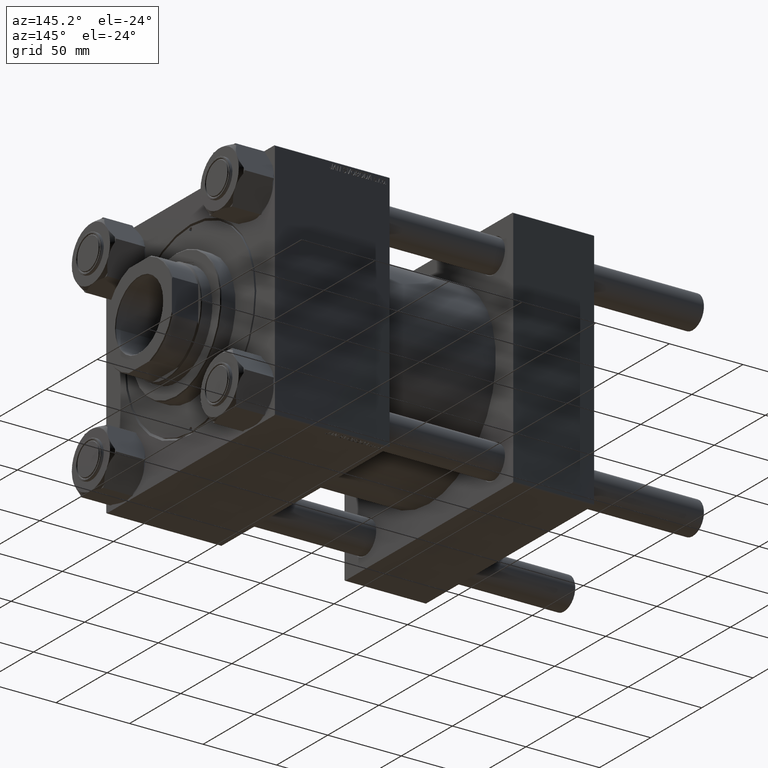
[diagram: clean part render]
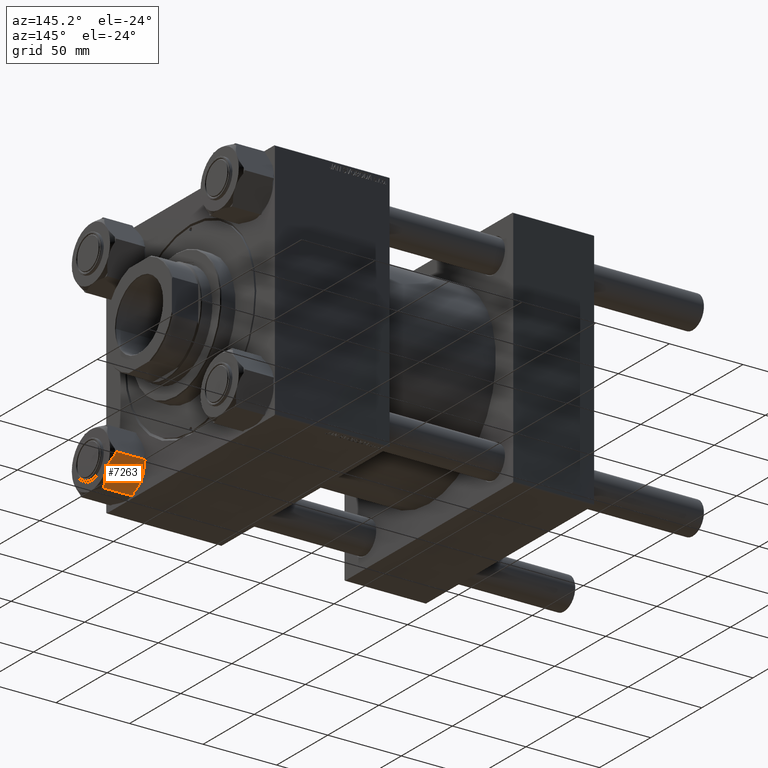
[diagram: same view with one face highlighted and labeled with its STEP entity id]
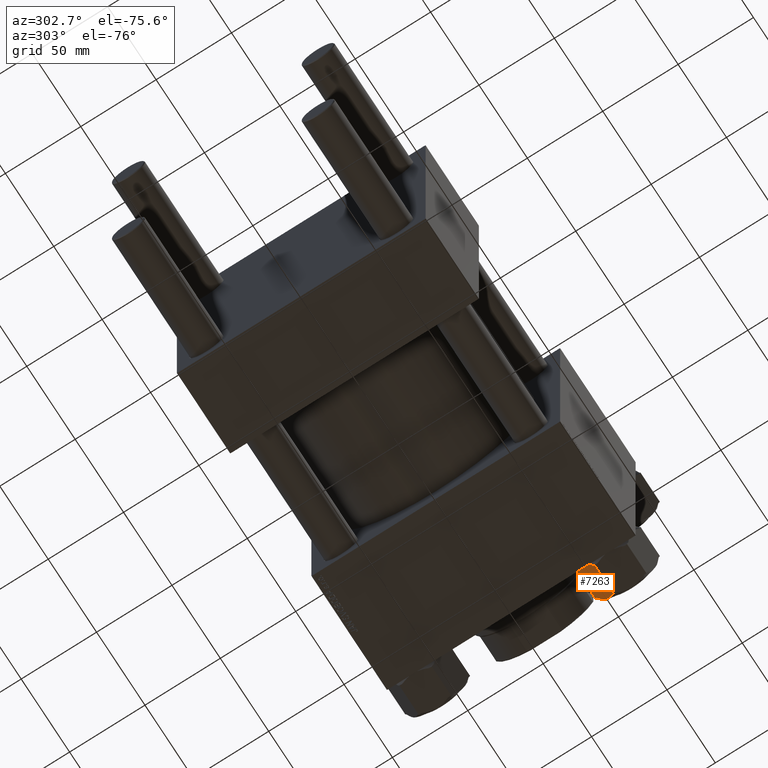
[diagram: same view with one face highlighted and labeled with its STEP entity id]
A machine part, auxiliary view. The second image highlights one B-rep face of the part: STEP entity #7263.
A second angle (auxiliary view) of the same face is appended — the face is thin or edge-on in the first view.
In plain terms, the highlighted planar face has unit normal (0, -0.8135, 0.5816).
Its self-contained STEP definition (entity closure, byte-faithful):
#313 = DIRECTION ( 'NONE',  ( 0.5000000000000004441, -0.8660254037844384856, 0.000000000000000000 ) ) ;
#1204 = VECTOR ( 'NONE', #22598, 1000.000000000000000 ) ;
#1591 = CARTESIAN_POINT ( 'NONE',  ( -16.60104632518791590, -8.693082765609052132, -0.01197337667082346013 ) ) ;
#1781 = LINE ( 'NONE', #17321, #11307 ) ;
#1925 = ORIENTED_EDGE ( 'NONE', *, *, #38229, .F. ) ;
#2962 = EDGE_CURVE ( 'NONE', #13458, #21548, #1781, .T. ) ;
#3219 = CARTESIAN_POINT ( 'NONE',  ( -14.68383736039109344, -12.01378610136367087, -23.76617792281659902 ) ) ;
#3776 = CARTESIAN_POINT ( 'NONE',  ( -21.62000000000000099, -1.258445848729200031E-15, -2.000000000000001776 ) ) ;
#4390 = CARTESIAN_POINT ( 'NONE',  ( -10.80999999999998096, -18.72346922981957817, -22.00000000000000000 ) ) ;
#4602 = VERTEX_POINT ( 'NONE', #39308 ) ;
#5158 = CARTESIAN_POINT ( 'NONE',  ( -16.98310883762006895, -8.031331082409149502, -23.99999999999999645 ) ) ;
#5585 = CARTESIAN_POINT ( 'NONE',  ( -13.58342913161265386, -13.91974906267479817, -0.7123487060405540028 ) ) ;
#5741 = DIRECTION ( 'NONE',  ( -0.5000000000000003331, 0.8660254037844383745, 0.000000000000000000 ) ) ;
#5953 = VERTEX_POINT ( 'NONE', #41405 ) ;
#7037 = CARTESIAN_POINT ( 'NONE',  ( -21.62000000000000099, -1.258445848729200031E-15, -22.00000000000000000 ) ) ;
#7194 = ORIENTED_EDGE ( 'NONE', *, *, #20094, .T. ) ;
#7263 = ADVANCED_FACE ( 'NONE', ( #41691 ), #49099, .F. ) ;
#7764 = CARTESIAN_POINT ( 'NONE',  ( -20.65611126068911219, -1.669504269329982415, -22.00000000000000000 ) ) ;
#8715 = LINE ( 'NONE', #31696, #45926 ) ;
#9232 = DIRECTION ( 'NONE',  ( 0.5000000000000004441, -0.8660254037844384856, 0.000000000000000000 ) ) ;
#9660 = CARTESIAN_POINT ( 'NONE',  ( -16.21499999999999275, -9.361734614909785535, 0.000000000000000000 ) ) ;
#10194 = DIRECTION ( 'NONE',  ( -0.5000000000000004441, 0.8660254037844384856, 0.000000000000000000 ) ) ;
#10196 = VERTEX_POINT ( 'NONE', #7764 ) ;
#10565 = DIRECTION ( 'NONE',  ( 0.8660254037844384856, 0.5000000000000004441, 0.000000000000000000 ) ) ;
#11307 = VECTOR ( 'NONE', #33649, 999.9999999999998863 ) ;
#11797 = EDGE_CURVE ( 'NONE', #12653, #34705, #24862, .T. ) ;
#12596 = VERTEX_POINT ( 'NONE', #35512 ) ;
#12653 = VERTEX_POINT ( 'NONE', #27863 ) ;
#13059 = CARTESIAN_POINT ( 'NONE',  ( -20.65611126068911219, -1.669504269329982415, -22.00000000000000000 ) ) ;
#13450 = EDGE_CURVE ( 'NONE', #34705, #5953, #8715, .T. ) ;
#13458 = VERTEX_POINT ( 'NONE', #4390 ) ;
#14232 = CARTESIAN_POINT ( 'NONE',  ( -13.21634051119548126, -14.55556520411771437, -0.9250850388961004978 ) ) ;
#14439 = CARTESIAN_POINT ( 'NONE',  ( -15.25296234352181557, -11.02803271472448010, -23.90516550165011367 ) ) ;
#14676 = CARTESIAN_POINT ( 'NONE',  ( -11.77388873931088220, -17.05396496048959420, -2.000000000000000000 ) ) ;
#15168 = ORIENTED_EDGE ( 'NONE', *, *, #33208, .F. ) ;
#16627 = CARTESIAN_POINT ( 'NONE',  ( -18.84657086838732098, -4.803720167144771125, -23.28765129395944555 ) ) ;
#16883 = CARTESIAN_POINT ( 'NONE',  ( -19.22845374672205665, -4.142279619328383511, -0.8936198542777903375 ) ) ;
#16884 = CARTESIAN_POINT ( 'NONE',  ( -19.94246781890513986, -2.905570968988129277, -22.58212083167677164 ) ) ;
#17321 = CARTESIAN_POINT ( 'NONE',  ( -10.80999999999998096, -18.72346922981957817, -22.00000000000000000 ) ) ;
#19016 = CARTESIAN_POINT ( 'NONE',  ( -15.82895367481207138, -10.03038646421052427, -23.98802662332916924 ) ) ;
#20094 = EDGE_CURVE ( 'NONE', #13458, #5953, #34334, .T. ) ;
#20727 = CARTESIAN_POINT ( 'NONE',  ( -20.30204076991166673, -2.282772348817363461, -22.30351413196914834 ) ) ;
#20774 = CARTESIAN_POINT ( 'NONE',  ( -11.77388873931088220, -17.05396496048959420, -22.00000000000000000 ) ) ;
#21548 = VERTEX_POINT ( 'NONE', #20774 ) ;
#21561 = ORIENTED_EDGE ( 'NONE', *, *, #13450, .F. ) ;
#22598 = DIRECTION ( 'NONE',  ( -0.000000000000000000, -0.000000000000000000, 1.000000000000000000 ) ) ;
#23117 = CARTESIAN_POINT ( 'NONE',  ( -16.02284832181302932, -9.694551084289219745, -23.99999999999998934 ) ) ;
#24862 = B_SPLINE_CURVE_WITH_KNOTS ( 'NONE', 3,
 ( #9660, #24991, #33634, #5585, #14232, #36701, #25235, #29810 ),
 .UNSPECIFIED., .F., .F.,
 ( 4, 2, 2, 4 ),
 ( 0.009109849294687024507, 0.01366157320126709478, 0.01593743515455713078, 0.01821329710784716852 ),
 .UNSPECIFIED. ) ;
#24991 = CARTESIAN_POINT ( 'NONE',  ( -15.44689116237992010, -10.69213814741042690, 1.084202172485503325E-16 ) ) ;
#25064 = CARTESIAN_POINT ( 'NONE',  ( -18.12021770021051736, -6.061800758665626176, -0.3703068632035674823 ) ) ;
#25235 = CARTESIAN_POINT ( 'NONE',  ( -12.12795923008832766, -16.44069688100221782, -1.696485868030862987 ) ) ;
#26434 = CARTESIAN_POINT ( 'NONE',  ( -10.80999999999998096, -18.72346922981957817, -24.00000000000000000 ) ) ;
#27863 = CARTESIAN_POINT ( 'NONE',  ( -16.21499999999999275, -9.361734614909785535, 0.000000000000000000 ) ) ;
#27994 = EDGE_CURVE ( 'NONE', #10196, #40149, #36742, .T. ) ;
#28582 = AXIS2_PLACEMENT_3D ( 'NONE', #45267, #10565, #5741 ) ;
#28894 = CARTESIAN_POINT ( 'NONE',  ( -17.17703765647816994, -7.695436515095090080, -0.09483449834989436666 ) ) ;
#29142 = CARTESIAN_POINT ( 'NONE',  ( -16.98598932500587111, -8.026341931906371130, -0.05945867712356565221 ) ) ;
#29810 = CARTESIAN_POINT ( 'NONE',  ( -11.77388873931088220, -17.05396496048959420, -2.000000000000000000 ) ) ;
#30480 = LINE ( 'NONE', #46036, #39350 ) ;
#30831 = B_SPLINE_CURVE_WITH_KNOTS ( 'NONE', 3,
 ( #45818, #45319, #33845, #38169, #3219, #14439, #37921, #19016, #23117, #34090 ),
 .UNSPECIFIED., .F., .F.,
 ( 4, 2, 2, 2, 4 ),
 ( 5.007809737522038475E-07, 0.004555175037830387977, 0.006832512166258704507, 0.007971180730472862339, 0.009109849294687026242 ),
 .UNSPECIFIED. ) ;
#31696 = CARTESIAN_POINT ( 'NONE',  ( -10.80999999999998096, -18.72346922981957817, -2.000000000000001776 ) ) ;
#32467 = CARTESIAN_POINT ( 'NONE',  ( -16.21499999999999275, -9.361734614909785535, -24.00000000000000000 ) ) ;
#32722 = CARTESIAN_POINT ( 'NONE',  ( -10.80999999999998096, -18.72346922981957817, -2.000000000000001776 ) ) ;
#33208 = EDGE_CURVE ( 'NONE', #12596, #12653, #45415, .T. ) ;
#33553 = EDGE_CURVE ( 'NONE', #21548, #4602, #30831, .T. ) ;
#33634 = CARTESIAN_POINT ( 'NONE',  ( -14.69400019531144785, -11.99618355493267785, -0.1908188403547944889 ) ) ;
#33649 = DIRECTION ( 'NONE',  ( -0.5000000000000004441, 0.8660254037844384856, 0.000000000000000000 ) ) ;
#33845 = CARTESIAN_POINT ( 'NONE',  ( -13.20154625327792530, -14.58118961049118845, -23.10638014572221621 ) ) ;
#33927 = CARTESIAN_POINT ( 'NONE',  ( -10.80999999999998096, -18.72346922981957817, -22.00000000000000000 ) ) ;
#34090 = CARTESIAN_POINT ( 'NONE',  ( -16.21499999999999275, -9.361734614909785535, -24.00000000000000000 ) ) ;
#34334 = LINE ( 'NONE', #26434, #1204 ) ;
#34705 = VERTEX_POINT ( 'NONE', #14676 ) ;
#35054 = DIRECTION ( 'NONE',  ( -0.000000000000000000, -0.000000000000000000, 1.000000000000000000 ) ) ;
#35512 = CARTESIAN_POINT ( 'NONE',  ( -20.65611126068911219, -1.669504269329982415, -2.000000000000000000 ) ) ;
#35932 = EDGE_CURVE ( 'NONE', #4602, #10196, #36148, .T. ) ;
#36021 = CARTESIAN_POINT ( 'NONE',  ( -17.73599980468853587, -6.727285674886896771, -23.80918115964520965 ) ) ;
#36148 = B_SPLINE_CURVE_WITH_KNOTS ( 'NONE', 3,
 ( #32467, #5158, #36021, #16627, #47769, #16884, #20727, #13059 ),
 .UNSPECIFIED., .F., .F.,
 ( 4, 2, 2, 4 ),
 ( 0.009109849294687026242, 0.01366157320126709651, 0.01593743515455713078, 0.01821329710784716852 ),
 .UNSPECIFIED. ) ;
#36698 = ORIENTED_EDGE ( 'NONE', *, *, #2962, .F. ) ;
#36701 = CARTESIAN_POINT ( 'NONE',  ( -12.48753218109484742, -15.81789826083144668, -1.417879168323226580 ) ) ;
#36742 = LINE ( 'NONE', #33927, #45481 ) ;
#36809 = ORIENTED_EDGE ( 'NONE', *, *, #35932, .F. ) ;
#36950 = ORIENTED_EDGE ( 'NONE', *, *, #42345, .F. ) ;
#37136 = ORIENTED_EDGE ( 'NONE', *, *, #33553, .F. ) ;
#37921 = CARTESIAN_POINT ( 'NONE',  ( -15.44401067499411262, -10.69712729791320527, -23.94054132287643455 ) ) ;
#38169 = CARTESIAN_POINT ( 'NONE',  ( -14.30978229978946636, -12.66166847115395022, -23.62969313679642980 ) ) ;
#38229 = EDGE_CURVE ( 'NONE', #49106, #12596, #48023, .T. ) ;
#39308 = CARTESIAN_POINT ( 'NONE',  ( -16.21499999999999275, -9.361734614909785535, -24.00000000000000000 ) ) ;
#39350 = VECTOR ( 'NONE', #35054, 1000.000000000000000 ) ;
#40149 = VERTEX_POINT ( 'NONE', #7037 ) ;
#40863 = CARTESIAN_POINT ( 'NONE',  ( -17.74616263960889739, -6.709683128455900203, -0.2338220771833977030 ) ) ;
#41405 = CARTESIAN_POINT ( 'NONE',  ( -10.80999999999998096, -18.72346922981957817, -2.000000000000001776 ) ) ;
#41691 = FACE_OUTER_BOUND ( 'NONE', #48563, .T. ) ;
#41960 = ORIENTED_EDGE ( 'NONE', *, *, #11797, .F. ) ;
#42345 = EDGE_CURVE ( 'NONE', #40149, #49106, #30480, .T. ) ;
#43935 = CARTESIAN_POINT ( 'NONE',  ( -19.94878361794603450, -2.894631684158906815, -1.393668941363774172 ) ) ;
#44687 = CARTESIAN_POINT ( 'NONE',  ( -16.21499999999999275, -9.361734614909785535, 0.000000000000000000 ) ) ;
#45267 = CARTESIAN_POINT ( 'NONE',  ( -10.80999999999998096, -18.72346922981957817, -24.00000000000000000 ) ) ;
#45319 = CARTESIAN_POINT ( 'NONE',  ( -12.48121638205395278, -15.82883754566066514, -22.60633105863622916 ) ) ;
#45415 = B_SPLINE_CURVE_WITH_KNOTS ( 'NONE', 3,
 ( #47768, #43935, #16883, #25064, #40863, #28894, #29142, #1591, #47507, #44687 ),
 .UNSPECIFIED., .F., .F.,
 ( 4, 2, 2, 2, 4 ),
 ( 5.007809737505383690E-07, 0.004555175037830387109, 0.006832512166258706242, 0.007971180730472865808, 0.009109849294687024507 ),
 .UNSPECIFIED. ) ;
#45481 = VECTOR ( 'NONE', #10194, 999.9999999999998863 ) ;
#45818 = CARTESIAN_POINT ( 'NONE',  ( -11.77388873931088220, -17.05396496048959420, -22.00000000000000000 ) ) ;
#45926 = VECTOR ( 'NONE', #313, 999.9999999999998863 ) ;
#46036 = CARTESIAN_POINT ( 'NONE',  ( -21.62000000000000099, -1.258445848729200031E-15, -24.00000000000000000 ) ) ;
#47507 = CARTESIAN_POINT ( 'NONE',  ( -16.40715167818695619, -9.028918145530353101, -3.049318610115475674E-17 ) ) ;
#47768 = CARTESIAN_POINT ( 'NONE',  ( -20.65611126068911219, -1.669504269329982415, -2.000000000000000000 ) ) ;
#47769 = CARTESIAN_POINT ( 'NONE',  ( -19.21365948880450247, -4.167904025701862913, -23.07491496110390017 ) ) ;
#48023 = LINE ( 'NONE', #32722, #48941 ) ;
#48563 = EDGE_LOOP ( 'NONE', ( #36698, #7194, #21561, #41960, #15168, #1925, #36950, #50174, #36809, #37136 ) ) ;
#48941 = VECTOR ( 'NONE', #9232, 999.9999999999998863 ) ;
#49099 = PLANE ( 'NONE',  #28582 ) ;
#49106 = VERTEX_POINT ( 'NONE', #3776 ) ;
#50174 = ORIENTED_EDGE ( 'NONE', *, *, #27994, .F. ) ;